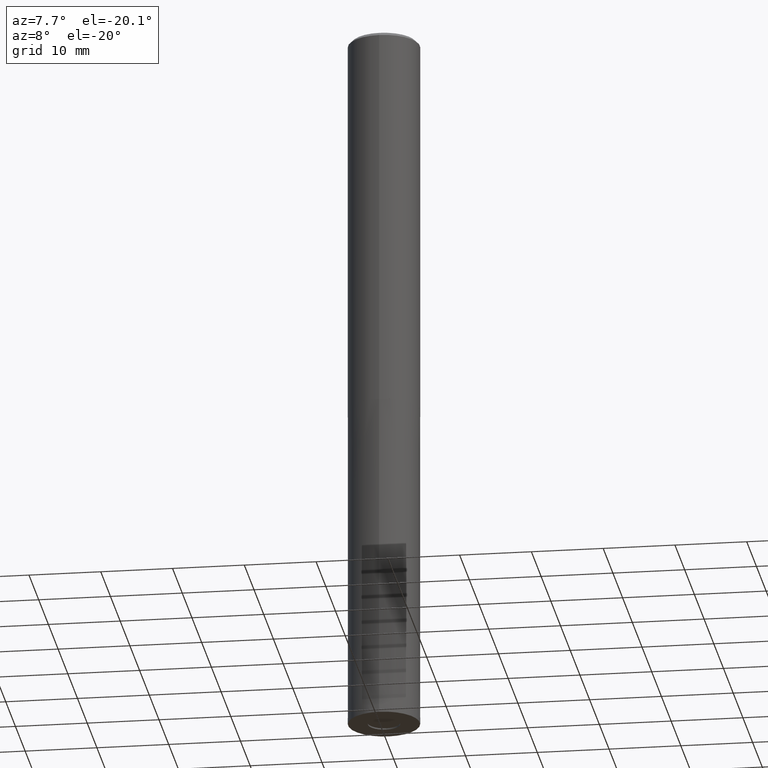
[diagram: clean part render]
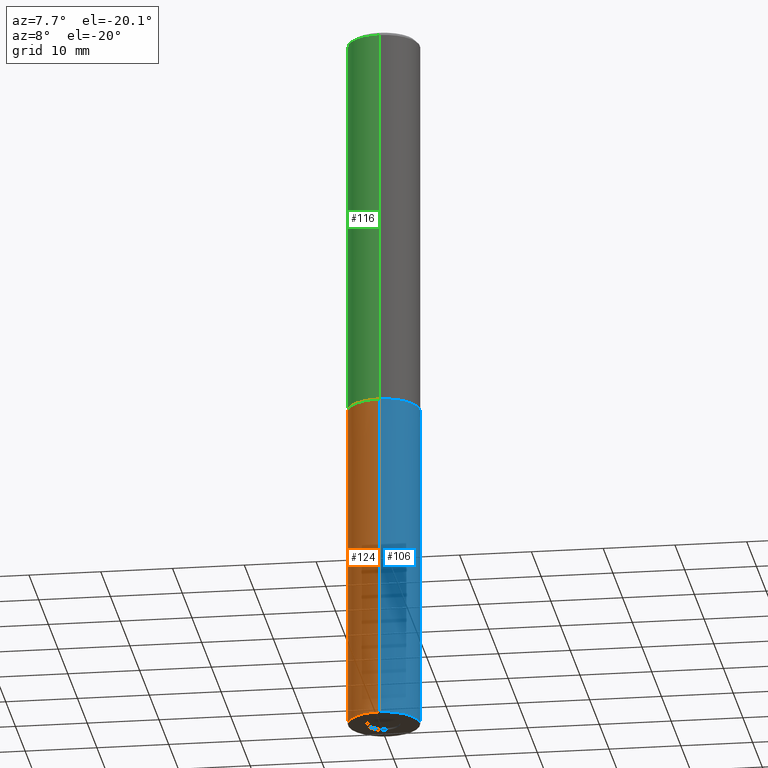
[diagram: same view with three faces highlighted in distinct colors, each labeled with its STEP entity id]
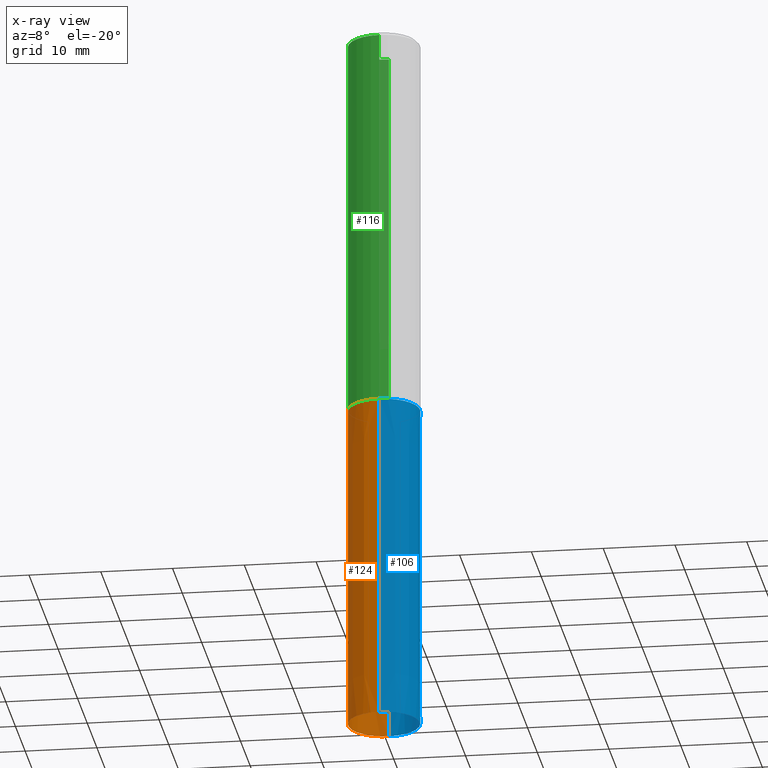
[diagram: x-ray of the same camera — body ghosted, the three highlighted faces saturated]
A machine part, auxiliary view with three faces highlighted in distinct colors.
The next image is the same camera in x-ray (body ghosted, the three faces saturated) — at least one of them is partly hidden behind the body in this view.
Their STEP definitions:

[orange] entity #124 — the highlighted conical surface has half-angle 0 deg.
#124=ADVANCED_FACE('',(#275),#276,.T.);
#126=EDGE_CURVE('',#140,#144,#278,.T.);
#136=VERTEX_POINT('',#290);
#140=VERTEX_POINT('',#294);
#144=VERTEX_POINT('',#299);
#154=EDGE_CURVE('',#144,#180,#310,.T.);
#176=EDGE_CURVE('',#180,#136,#337,.T.);
#180=VERTEX_POINT('',#341);
#192=EDGE_CURVE('',#140,#136,#353,.T.);
#275=FACE_OUTER_BOUND('',#434,.T.);
#276=CONICAL_SURFACE('',#435,4.99995,2.17391304346977E-006);
#278=LINE('',#438,#439);
#290=CARTESIAN_POINT('',(0.0,5.0,-100.0));
#294=CARTESIAN_POINT('',(6.12303176911189E-016,-5.0,-100.0));
#299=CARTESIAN_POINT('',(6.12290930847651E-016,-4.9999,-54.0));
#310=CIRCLE('',#477,4.9999);
#337=LINE('',#508,#509);
#341=CARTESIAN_POINT('',(0.0,4.9999,-54.0));
#353=CIRCLE('',#530,5.0);
#434=EDGE_LOOP('',(#626,#627,#628,#629));
#435=AXIS2_PLACEMENT_3D('',#630,#631,#632);
#438=CARTESIAN_POINT('',(6.1229705387942E-016,-4.99995,-77.0));
#439=VECTOR('',#633,1.0);
#477=AXIS2_PLACEMENT_3D('',#667,#668,#669);
#508=CARTESIAN_POINT('',(-6.12297053879419E-016,4.99995,-77.0));
#509=VECTOR('',#711,1.0);
#530=AXIS2_PLACEMENT_3D('',#724,#725,#726);
#626=ORIENTED_EDGE('',*,*,#176,.T.);
#627=ORIENTED_EDGE('',*,*,#192,.F.);
#628=ORIENTED_EDGE('',*,*,#126,.T.);
#629=ORIENTED_EDGE('',*,*,#154,.T.);
#630=CARTESIAN_POINT('',(0.0,0.0,-77.0));
#631=DIRECTION('',(0.0,-0.0,-1.0));
#632=DIRECTION('',(0.0,1.0,0.0));
#633=DIRECTION('',(-2.66218772568833E-022,2.17391304346806E-006,0.999999999997637));
#667=CARTESIAN_POINT('',(0.0,0.0,-54.0));
#668=DIRECTION('',(0.0,0.0,-1.0));
#669=DIRECTION('',(0.0,1.0,0.0));
#711=DIRECTION('',(-2.66218772568833E-022,2.17391304346806E-006,-0.999999999997637));
#724=CARTESIAN_POINT('',(0.0,0.0,-100.0));
#725=DIRECTION('',(0.0,0.0,-1.0));
#726=DIRECTION('',(0.0,1.0,0.0));

[blue] entity #106 — the highlighted conical surface has half-angle 0 deg.
#106=ADVANCED_FACE('',(#253),#254,.T.);
#126=EDGE_CURVE('',#140,#144,#278,.T.);
#136=VERTEX_POINT('',#290);
#140=VERTEX_POINT('',#294);
#144=VERTEX_POINT('',#299);
#176=EDGE_CURVE('',#180,#136,#337,.T.);
#178=EDGE_CURVE('',#180,#144,#339,.T.);
#180=VERTEX_POINT('',#341);
#220=EDGE_CURVE('',#136,#140,#383,.T.);
#253=FACE_OUTER_BOUND('',#410,.T.);
#254=CONICAL_SURFACE('',#411,4.99995,2.17391304346977E-006);
#278=LINE('',#438,#439);
#290=CARTESIAN_POINT('',(0.0,5.0,-100.0));
#294=CARTESIAN_POINT('',(6.12303176911189E-016,-5.0,-100.0));
#299=CARTESIAN_POINT('',(6.12290930847651E-016,-4.9999,-54.0));
#337=LINE('',#508,#509);
#339=CIRCLE('',#512,4.9999);
#341=CARTESIAN_POINT('',(0.0,4.9999,-54.0));
#383=CIRCLE('',#574,5.0);
#410=EDGE_LOOP('',(#597,#598,#599,#600));
#411=AXIS2_PLACEMENT_3D('',#601,#602,#603);
#438=CARTESIAN_POINT('',(6.1229705387942E-016,-4.99995,-77.0));
#439=VECTOR('',#633,1.0);
#508=CARTESIAN_POINT('',(-6.12297053879419E-016,4.99995,-77.0));
#509=VECTOR('',#711,1.0);
#512=AXIS2_PLACEMENT_3D('',#712,#713,#714);
#574=AXIS2_PLACEMENT_3D('',#755,#756,#757);
#597=ORIENTED_EDGE('',*,*,#176,.F.);
#598=ORIENTED_EDGE('',*,*,#178,.T.);
#599=ORIENTED_EDGE('',*,*,#126,.F.);
#600=ORIENTED_EDGE('',*,*,#220,.F.);
#601=CARTESIAN_POINT('',(0.0,0.0,-77.0));
#602=DIRECTION('',(0.0,-0.0,-1.0));
#603=DIRECTION('',(0.0,1.0,0.0));
#633=DIRECTION('',(-2.66218772568833E-022,2.17391304346806E-006,0.999999999997637));
#711=DIRECTION('',(-2.66218772568833E-022,2.17391304346806E-006,-0.999999999997637));
#712=CARTESIAN_POINT('',(0.0,0.0,-54.0));
#713=DIRECTION('',(0.0,0.0,-1.0));
#714=DIRECTION('',(0.0,1.0,0.0));
#755=CARTESIAN_POINT('',(0.0,0.0,-100.0));
#756=DIRECTION('',(0.0,0.0,-1.0));
#757=DIRECTION('',(0.0,1.0,0.0));

[green] entity #116 — the highlighted cylindrical surface (edge-blend (fillet) strip) has radius 5 mm, axis along (-0, -0, 1).
#98=EDGE_CURVE('',#104,#206,#244,.T.);
#104=VERTEX_POINT('',#251);
#116=ADVANCED_FACE('',(#266),#267,.T.);
#138=EDGE_CURVE('',#104,#148,#292,.T.);
#148=VERTEX_POINT('',#303);
#184=EDGE_CURVE('',#148,#214,#345,.T.);
#206=VERTEX_POINT('',#368);
#212=EDGE_CURVE('',#214,#206,#375,.T.);
#214=VERTEX_POINT('',#377);
#244=CIRCLE('',#400,5.0);
#251=CARTESIAN_POINT('',(6.12303176911189E-016,-5.0,-54.0));
#266=FACE_OUTER_BOUND('',#423,.T.);
#267=CYLINDRICAL_SURFACE('',#424,5.0);
#292=LINE('',#458,#459);
#303=CARTESIAN_POINT('',(6.12303176911189E-016,-5.0,-0.5));
#345=CIRCLE('',#519,5.0);
#368=CARTESIAN_POINT('',(0.0,5.0,-54.0));
#375=LINE('',#561,#562);
#377=CARTESIAN_POINT('',(0.0,5.0,-0.5));
#400=AXIS2_PLACEMENT_3D('',#582,#583,#584);
#423=EDGE_LOOP('',(#617,#618,#619,#620));
#424=AXIS2_PLACEMENT_3D('',#621,#622,#623);
#458=CARTESIAN_POINT('',(6.12303176911189E-016,-5.0,-27.25));
#459=VECTOR('',#649,1.0);
#519=AXIS2_PLACEMENT_3D('',#715,#716,#717);
#561=CARTESIAN_POINT('',(-6.12303176911189E-016,5.0,-27.25));
#562=VECTOR('',#750,1.0);
#582=CARTESIAN_POINT('',(0.0,0.0,-54.0));
#583=DIRECTION('',(0.0,0.0,-1.0));
#584=DIRECTION('',(0.0,1.0,0.0));
#617=ORIENTED_EDGE('',*,*,#212,.T.);
#618=ORIENTED_EDGE('',*,*,#98,.F.);
#619=ORIENTED_EDGE('',*,*,#138,.T.);
#620=ORIENTED_EDGE('',*,*,#184,.T.);
#621=CARTESIAN_POINT('',(0.0,0.0,-27.25));
#622=DIRECTION('',(-0.0,-0.0,1.0));
#623=DIRECTION('',(0.0,1.0,0.0));
#649=DIRECTION('',(-0.0,-0.0,1.0));
#715=CARTESIAN_POINT('',(0.0,0.0,-0.5));
#716=DIRECTION('',(0.0,0.0,-1.0));
#717=DIRECTION('',(0.0,1.0,0.0));
#750=DIRECTION('',(0.0,0.0,-1.0));